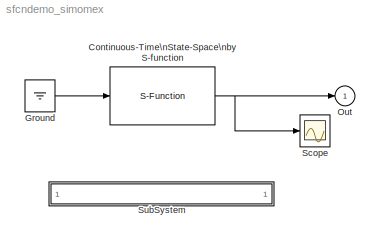
MODEL sfcndemo_simomex
KIND model
BLOCK [S-Function] Continuous-Time\nState-Space\nby S-function
  FunctionName = simomex
  MaskDescription = This is a S-function block which has single-input and two output state-space system.
  MaskDisplay = disp('dx/dt = A*X + B*U\\nY      = C*X + D*U');
  MaskIconFrame = on
  MaskIconOpaque = on
  MaskIconRotate = none
  MaskIconUnits = autoscale
  MaskType = S-function: simomex
  Ports = [1, 1]
BLOCK [Ground] Ground
BLOCK [Outport] Out
  IconDisplay = Port number
  InitialOutput = 0
BLOCK [Scope] Scope
  DataFormat = StructureWithTime
  NumInputPorts = 1
  Ports = [1]
BLOCK [SubSystem] SubSystem
  MaskDisplay = disp('matlabroot<path>');
  MaskIconFrame = on
  MaskIconOpaque = on
  MaskIconRotate = none
  MaskIconUnits = autoscale
  MinAlgLoopOccurrences = off
  OpenFcn = edit(fullfile(matlabroot,'simulink','src','simomex.c'))
  Ports = []
  PropExecContextAcrossSSBoundary = on
  RTWSystemCode = Auto
  TreatAsAtomicUnit = off
NET Continuous-Time\nState-Space\nby S-function:1 -> Out:1, Scope:1
LINE Ground:1 -> Continuous-Time\nState-Space\nby S-function:1
note: NET lines group one-source signal fan-out (src -> all destinations, sorted); 1:1 wires keep LINE
note: 1 file-system path scrubbed to <path> (not preserved elsewhere — flat text is the only slx artifact)
